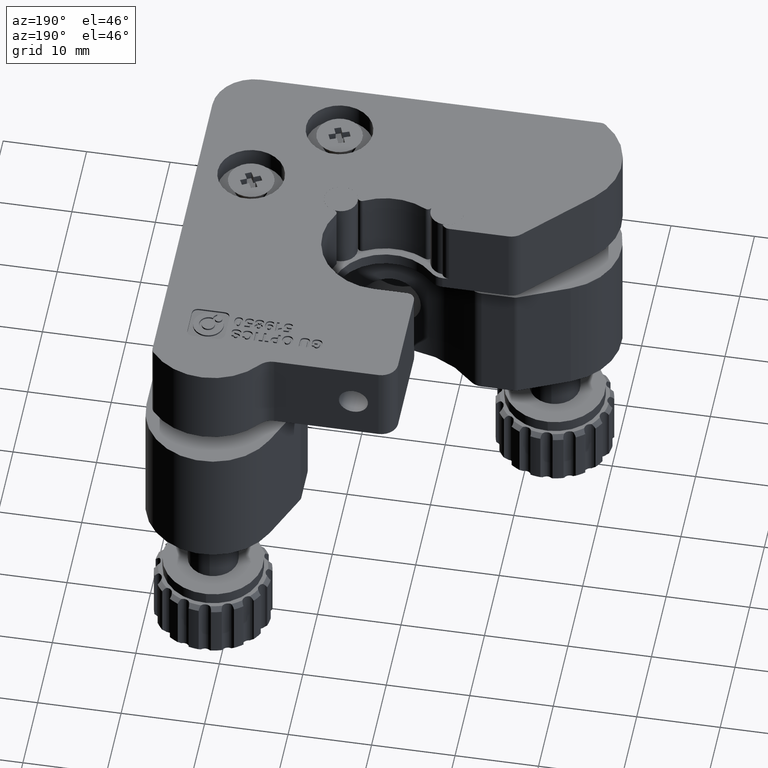
[diagram: clean part render]
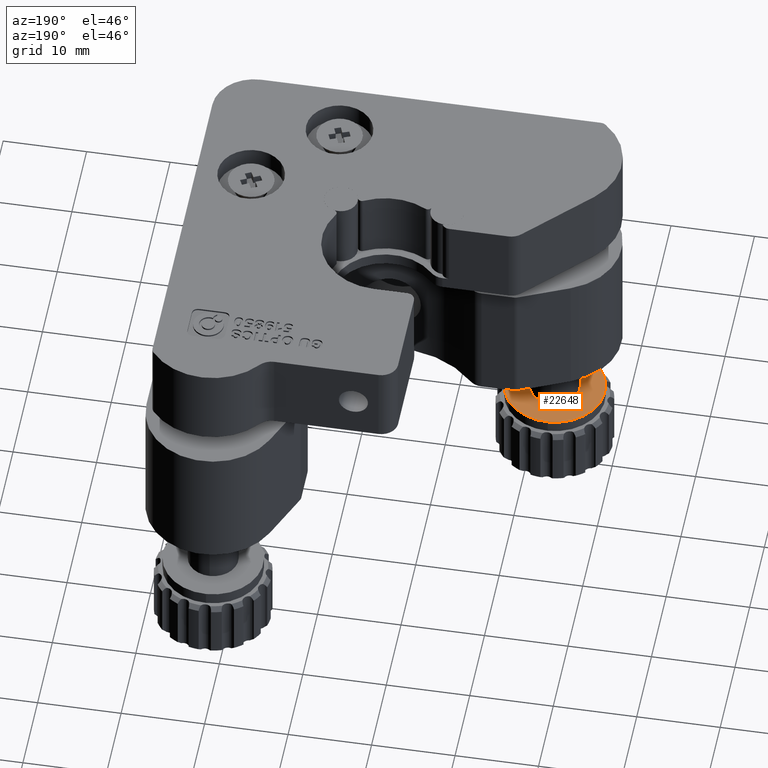
[diagram: same view with one face highlighted and labeled with its STEP entity id]
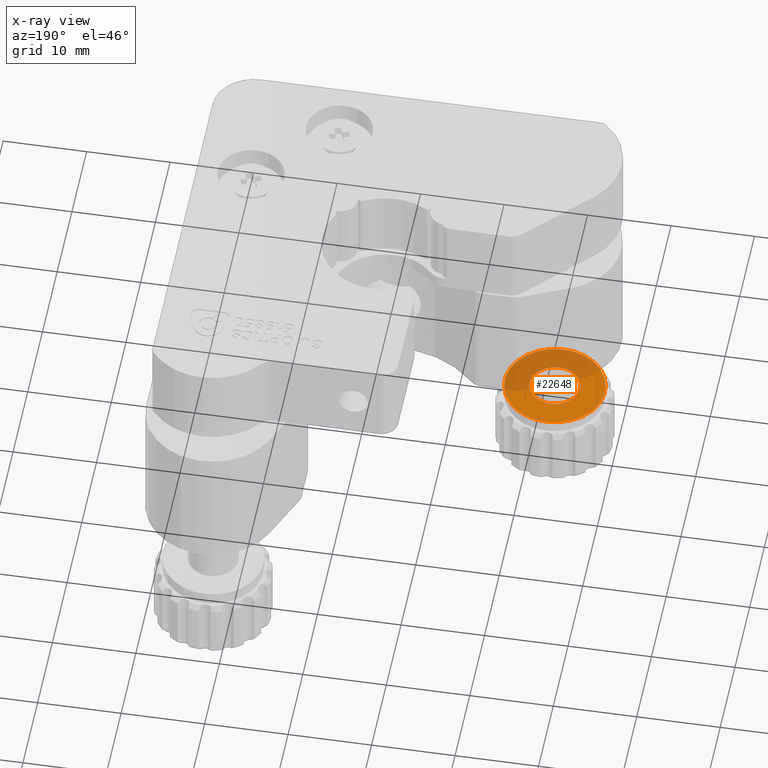
[diagram: x-ray of the same camera — body ghosted, the highlighted face saturated]
A machine part, auxiliary view. The second image highlights one B-rep face of the part: STEP entity #22648.
The next image is the same camera in x-ray: the body ghosted, the highlighted face saturated — about 46% of this face is hidden behind the body in this view.
In plain terms, the highlighted planar face has unit normal (0, -0, 1).
Its self-contained STEP definition (entity closure, byte-faithful):
#320 = CIRCLE ( 'NONE', #10165, 5.999999999999992900 ) ;
#372 = DIRECTION ( 'NONE',  ( -5.551115123125780900E-017, 1.734723475976791700E-018, -1.000000000000000000 ) ) ;
#983 = AXIS2_PLACEMENT_3D ( 'NONE', #34570, #6590, #11162 ) ;
#2399 = EDGE_LOOP ( 'NONE', ( #35287, #6831 ) ) ;
#3447 = VERTEX_POINT ( 'NONE', #6561 ) ;
#3744 = DIRECTION ( 'NONE',  ( -5.551115123125780900E-017, 1.734723475976791700E-018, -1.000000000000000000 ) ) ;
#5225 = FACE_OUTER_BOUND ( 'NONE', #9771, .T. ) ;
#6377 = CARTESIAN_POINT ( 'NONE',  ( -42.79999999999999700, 7.999999999999994700, -8.799999999999991800 ) ) ;
#6561 = CARTESIAN_POINT ( 'NONE',  ( -42.59837033068795600, 2.003388833978553100, -8.799999999999991800 ) ) ;
#6590 = DIRECTION ( 'NONE',  ( -5.551115123125780900E-017, 1.734723475976791700E-018, -1.000000000000000000 ) ) ;
#6831 = ORIENTED_EDGE ( 'NONE', *, *, #10722, .T. ) ;
#9168 = DIRECTION ( 'NONE',  ( 0.03360494488533973000, -0.9994351943369080800, 0.0000000000000000000 ) ) ;
#9771 = EDGE_LOOP ( 'NONE', ( #27809, #35115 ) ) ;
#10165 = AXIS2_PLACEMENT_3D ( 'NONE', #6377, #25879, #9168 ) ;
#10722 = EDGE_CURVE ( 'NONE', #25216, #28149, #23148, .T. ) ;
#11162 = DIRECTION ( 'NONE',  ( 0.03360494488534090200, -0.9994351943369080800, 0.0000000000000000000 ) ) ;
#11518 = CARTESIAN_POINT ( 'NONE',  ( -45.79830558301071600, 7.899185165343974200, -8.799999999999991800 ) ) ;
#13362 = AXIS2_PLACEMENT_3D ( 'NONE', #20446, #3744, #23272 ) ;
#14369 = DIRECTION ( 'NONE',  ( -0.03360494488534015300, 0.9994351943369080800, 3.599192871981873900E-018 ) ) ;
#15422 = EDGE_CURVE ( 'NONE', #27826, #3447, #320, .T. ) ;
#17116 = CARTESIAN_POINT ( 'NONE',  ( -42.79999999999999700, 7.999999999999994700, -8.799999999999991800 ) ) ;
#17121 = CARTESIAN_POINT ( 'NONE',  ( -42.90081483465601800, 10.99830558301071200, -8.799999999999991800 ) ) ;
#19691 = PLANE ( 'NONE',  #25341 ) ;
#19888 = DIRECTION ( 'NONE',  ( 0.03360494488534090200, -0.9994351943369080800, 0.0000000000000000000 ) ) ;
#20446 = CARTESIAN_POINT ( 'NONE',  ( -42.79999999999999700, 7.999999999999994700, -8.799999999999991800 ) ) ;
#22005 = CARTESIAN_POINT ( 'NONE',  ( -43.00162966931203800, 13.99661116602143600, -8.799999999999991800 ) ) ;
#22596 = EDGE_CURVE ( 'NONE', #28149, #25216, #24449, .T. ) ;
#22648 = ADVANCED_FACE ( 'NONE', ( #34959, #5225 ), #19691, .T. ) ;
#23148 = CIRCLE ( 'NONE', #33541, 2.999999999999995100 ) ;
#23272 = DIRECTION ( 'NONE',  ( 0.03360494488533973000, -0.9994351943369080800, 0.0000000000000000000 ) ) ;
#24449 = CIRCLE ( 'NONE', #983, 2.999999999999995100 ) ;
#25216 = VERTEX_POINT ( 'NONE', #17121 ) ;
#25341 = AXIS2_PLACEMENT_3D ( 'NONE', #11518, #31073, #14369 ) ;
#25879 = DIRECTION ( 'NONE',  ( -5.551115123125780900E-017, 1.734723475976791700E-018, -1.000000000000000000 ) ) ;
#26476 = CIRCLE ( 'NONE', #13362, 5.999999999999992900 ) ;
#27809 = ORIENTED_EDGE ( 'NONE', *, *, #32638, .F. ) ;
#27826 = VERTEX_POINT ( 'NONE', #22005 ) ;
#28149 = VERTEX_POINT ( 'NONE', #32266 ) ;
#31073 = DIRECTION ( 'NONE',  ( 5.551115123125780900E-017, -1.734723475976803200E-018, 1.000000000000000000 ) ) ;
#32266 = CARTESIAN_POINT ( 'NONE',  ( -42.69918516534397700, 5.001694416989275600, -8.799999999999991800 ) ) ;
#32638 = EDGE_CURVE ( 'NONE', #3447, #27826, #26476, .T. ) ;
#33541 = AXIS2_PLACEMENT_3D ( 'NONE', #17116, #372, #19888 ) ;
#34570 = CARTESIAN_POINT ( 'NONE',  ( -42.79999999999999700, 7.999999999999994700, -8.799999999999991800 ) ) ;
#34959 = FACE_BOUND ( 'NONE', #2399, .T. ) ;
#35115 = ORIENTED_EDGE ( 'NONE', *, *, #15422, .F. ) ;
#35287 = ORIENTED_EDGE ( 'NONE', *, *, #22596, .T. ) ;